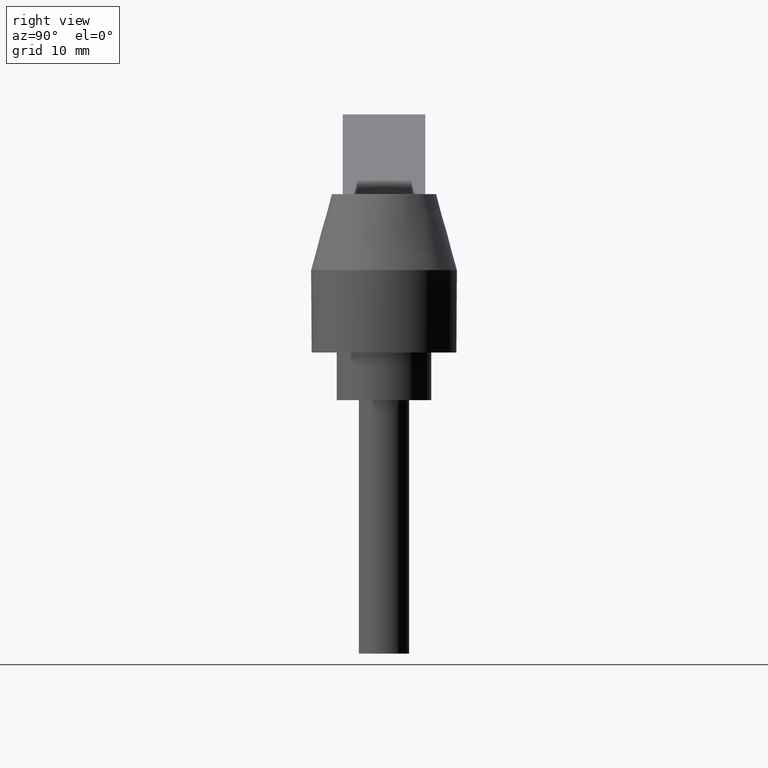
[diagram: clean part render]
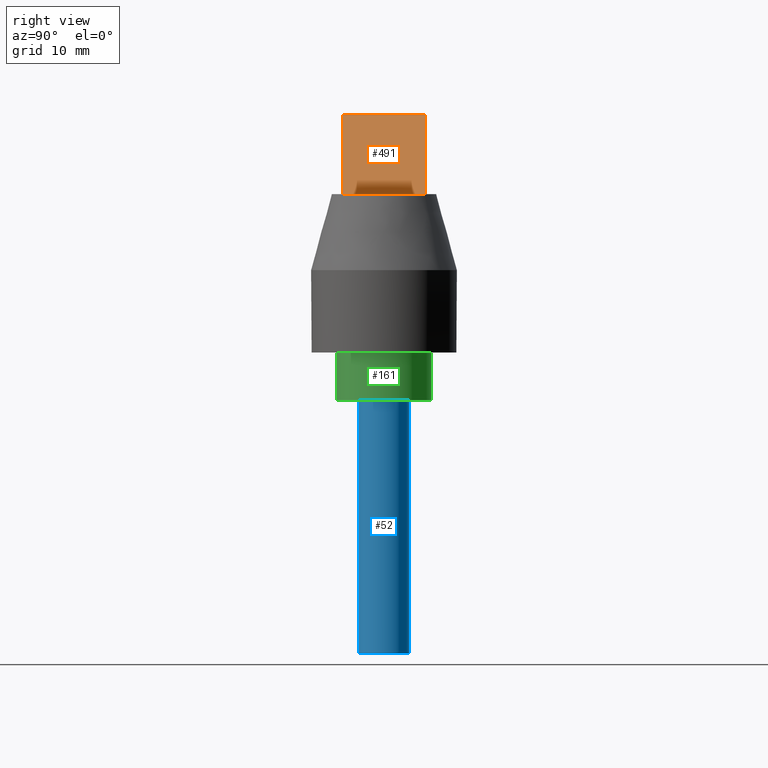
[diagram: same view with three faces highlighted in distinct colors, each labeled with its STEP entity id]
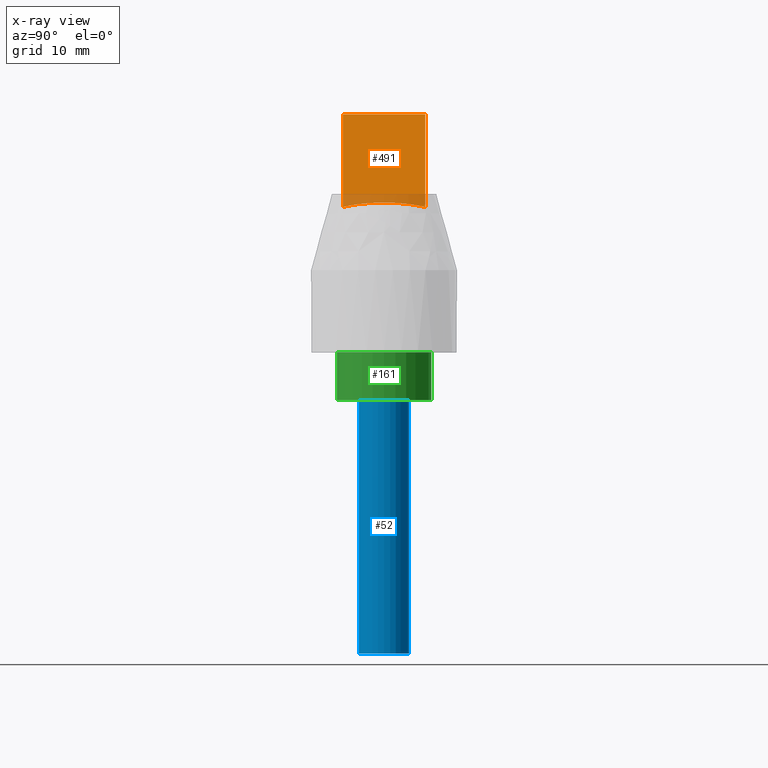
[diagram: x-ray of the same camera — body ghosted, the three highlighted faces saturated]
A machine part, right view with three faces highlighted in distinct colors.
The next image is the same camera in x-ray (body ghosted, the three faces saturated) — at least one of them is partly hidden behind the body in this view.
Their STEP definitions:

[orange] entity #491 — the highlighted planar face has unit normal (0.2652, 0, 0.9642).
#296=CARTESIAN_POINT('',(-8.643206395600316,-3.894810E-014,31.161698878357612));
#297=VERTEX_POINT('',#296);
#304=CARTESIAN_POINT('',(-5.989480691774037,-6.499999999995148,30.431840536688341));
#305=VERTEX_POINT('',#304);
#306=CARTESIAN_POINT('',(-8.643206395600316,-3.894810E-014,31.161698878357598));
#307=CARTESIAN_POINT('',(-8.643206395600316,-0.506302708553347,31.161698878357598));
#308=CARTESIAN_POINT('',(-8.539626593121721,-1.769296278668458,31.133211162856824));
#309=CARTESIAN_POINT('',(-7.984379968311004,-3.656764436087019,30.980500812944641));
#310=CARTESIAN_POINT('',(-7.040074404947722,-5.309362675028818,30.720786973071725));
#311=CARTESIAN_POINT('',(-6.303491650776449,-6.179184693648446,30.518203463147103));
#312=CARTESIAN_POINT('',(-5.989480691774358,-6.499999999997559,30.431840536687346));
#313=B_SPLINE_CURVE_WITH_KNOTS('',3,(#306,#307,#308,#309,#310,#311,#312),.UNSPECIFIED.,.F.,.U.,(4,1,1,1,4),(0.0,1.520719268580641,3.785791119431691,5.874898477297450,7.247546618980997),.UNSPECIFIED.);
#314=EDGE_CURVE('',#297,#305,#313,.T.);
#326=CARTESIAN_POINT('',(-5.989480691774158,6.499999999994949,30.431840536688327));
#327=VERTEX_POINT('',#326);
#337=CARTESIAN_POINT('',(-8.643206395600316,-3.894810E-014,31.161698878357598));
#338=CARTESIAN_POINT('',(-8.643206395600235,0.506302708553188,31.161698878357598));
#339=CARTESIAN_POINT('',(-8.539626593121721,1.769296278668300,31.133211162856782));
#340=CARTESIAN_POINT('',(-7.984379968311005,3.656764436086861,30.980500812944641));
#341=CARTESIAN_POINT('',(-7.040074404947723,5.309362675028499,30.720786973071711));
#342=CARTESIAN_POINT('',(-6.303491650776449,6.179184693648288,30.518203463147088));
#343=CARTESIAN_POINT('',(-5.989480691774360,6.499999999997401,30.431840536687332));
#344=B_SPLINE_CURVE_WITH_KNOTS('',3,(#337,#338,#339,#340,#341,#342,#343),.UNSPECIFIED.,.F.,.U.,(4,1,1,1,4),(0.0,1.520719268580641,3.785791119431691,5.874898477297473,7.247546618981000),.UNSPECIFIED.);
#345=EDGE_CURVE('',#297,#327,#344,.T.);
#443=CARTESIAN_POINT('',(-59.246615726999266,-6.500000000000132,45.079233898757010));
#444=VERTEX_POINT('',#443);
#451=CARTESIAN_POINT('',(-59.246615726999266,6.499999999999967,45.079233898756982));
#452=VERTEX_POINT('',#451);
#453=CARTESIAN_POINT('',(-59.246615726999266,-6.500000000000132,45.079233898757010));
#454=DIRECTION('',(0.0,1.0,0.0));
#455=VECTOR('',#454,13.0);
#456=LINE('',#453,#455);
#457=EDGE_CURVE('',#444,#452,#456,.T.);
#469=CARTESIAN_POINT('',(-59.246615726999266,-6.500000000000132,45.079233898757010));
#470=DIRECTION('',(0.265184780781500,1.063716E-015,0.964197610473013));
#471=DIRECTION('',(0.964197610473013,-1.272602E-016,-0.265184780781500));
#472=AXIS2_PLACEMENT_3D('',#469,#470,#471);
#473=PLANE('',#472);
#474=CARTESIAN_POINT('',(-59.246615726999266,-6.500000000000132,45.079233898757010));
#475=DIRECTION('',(0.964197610473013,-1.286407E-016,-0.265184780781500));
#476=VECTOR('',#475,55.234668139335724);
#477=LINE('',#474,#476);
#478=EDGE_CURVE('',#444,#305,#477,.T.);
#479=ORIENTED_EDGE('',*,*,#478,.T.);
#480=ORIENTED_EDGE('',*,*,#314,.F.);
#481=ORIENTED_EDGE('',*,*,#345,.T.);
#482=CARTESIAN_POINT('',(-59.246615726999266,6.499999999999967,45.079233898756982));
#483=DIRECTION('',(0.964197610473013,-1.286407E-016,-0.265184780781500));
#484=VECTOR('',#483,55.234668139335696);
#485=LINE('',#482,#484);
#486=EDGE_CURVE('',#452,#327,#485,.T.);
#487=ORIENTED_EDGE('',*,*,#486,.F.);
#488=ORIENTED_EDGE('',*,*,#457,.F.);
#489=EDGE_LOOP('',(#479,#480,#481,#487,#488));
#490=FACE_OUTER_BOUND('',#489,.T.);
#491=ADVANCED_FACE('',(#490),#473,.T.);

[blue] entity #52 — the highlighted cylindrical surface (bore or boss wall) has radius 4 mm, axis along (-0, -0, -1).
#2=CARTESIAN_POINT('',(0.253749506228030,2.775558E-017,1.421085E-014));
#3=DIRECTION('',(-8.327157E-016,-9.542551E-016,-1.0));
#4=DIRECTION('',(-1.0,-1.110223E-016,8.327157E-016));
#5=AXIS2_PLACEMENT_3D('',#2,#3,#4);
#6=CYLINDRICAL_SURFACE('',#5,4.0);
#7=CARTESIAN_POINT('',(-3.746250493771987,-1.532108E-014,1.421085E-014));
#8=VERTEX_POINT('',#7);
#9=CARTESIAN_POINT('',(4.253749506228030,4.718448E-016,1.087999E-014));
#10=VERTEX_POINT('',#9);
#11=CARTESIAN_POINT('',(0.253749506228030,2.775558E-017,1.421085E-014));
#12=DIRECTION('',(-8.327157E-016,-9.542551E-016,-1.0));
#13=DIRECTION('',(-1.0,-1.110223E-016,8.327157E-016));
#14=AXIS2_PLACEMENT_3D('',#11,#12,#13);
#15=CIRCLE('',#14,4.0);
#16=EDGE_CURVE('',#8,#10,#15,.T.);
#17=ORIENTED_EDGE('',*,*,#16,.T.);
#18=CARTESIAN_POINT('',(0.253749506228030,2.775558E-017,1.421085E-014));
#19=DIRECTION('',(-8.327157E-016,-9.542551E-016,-1.0));
#20=DIRECTION('',(-1.0,-1.110223E-016,8.327157E-016));
#21=AXIS2_PLACEMENT_3D('',#18,#19,#20);
#22=CIRCLE('',#21,4.0);
#23=EDGE_CURVE('',#10,#8,#22,.T.);
#24=ORIENTED_EDGE('',*,*,#23,.T.);
#25=CARTESIAN_POINT('',(-3.746250493771987,-1.777037E-014,-39.999999999999986));
#26=VERTEX_POINT('',#25);
#27=CARTESIAN_POINT('',(-3.746250493771987,-1.532108E-014,1.421085E-014));
#28=DIRECTION('',(0.0,0.0,-1.0));
#29=VECTOR('',#28,40.0);
#30=LINE('',#27,#29);
#31=EDGE_CURVE('',#8,#26,#30,.T.);
#32=ORIENTED_EDGE('',*,*,#31,.T.);
#33=CARTESIAN_POINT('',(4.253749506228029,-1.977449E-015,-39.999999999999986));
#34=VERTEX_POINT('',#33);
#35=CARTESIAN_POINT('',(0.253749506228030,-2.421538E-015,-39.999999999999986));
#36=DIRECTION('',(-8.327157E-016,-9.542551E-016,-1.0));
#37=DIRECTION('',(-1.0,-1.110223E-016,8.327157E-016));
#38=AXIS2_PLACEMENT_3D('',#35,#36,#37);
#39=CIRCLE('',#38,4.0);
#40=EDGE_CURVE('',#34,#26,#39,.T.);
#41=ORIENTED_EDGE('',*,*,#40,.F.);
#42=CARTESIAN_POINT('',(0.253749506228030,-2.421538E-015,-39.999999999999986));
#43=DIRECTION('',(-8.327157E-016,-9.542551E-016,-1.0));
#44=DIRECTION('',(-1.0,-1.110223E-016,8.327157E-016));
#45=AXIS2_PLACEMENT_3D('',#42,#43,#44);
#46=CIRCLE('',#45,4.0);
#47=EDGE_CURVE('',#26,#34,#46,.T.);
#48=ORIENTED_EDGE('',*,*,#47,.F.);
#49=ORIENTED_EDGE('',*,*,#31,.F.);
#50=EDGE_LOOP('',(#17,#24,#32,#41,#48,#49));
#51=FACE_OUTER_BOUND('',#50,.T.);
#52=ADVANCED_FACE('',(#51),#6,.T.);

[green] entity #161 — the highlighted cylindrical surface (bore or boss wall) has radius 7.5 mm, axis along (-0, -0, -1).
#106=CARTESIAN_POINT('',(-7.499999999879919,3.952394E-014,2.842171E-014));
#107=VERTEX_POINT('',#106);
#108=CARTESIAN_POINT('',(7.499999999879975,8.326673E-016,-2.045622E-014));
#109=VERTEX_POINT('',#108);
#110=CARTESIAN_POINT('',(0.0,0.0,0.0));
#111=DIRECTION('',(-2.727496E-015,-1.072679E-015,-1.0));
#112=DIRECTION('',(-1.0,-1.110223E-016,2.727496E-015));
#113=AXIS2_PLACEMENT_3D('',#110,#111,#112);
#114=CIRCLE('',#113,7.499999999879975);
#115=EDGE_CURVE('',#107,#109,#114,.T.);
#117=CARTESIAN_POINT('',(0.0,0.0,0.0));
#118=DIRECTION('',(-2.727496E-015,-1.072679E-015,-1.0));
#119=DIRECTION('',(-1.0,-1.110223E-016,2.727496E-015));
#120=AXIS2_PLACEMENT_3D('',#117,#118,#119);
#121=CIRCLE('',#120,7.499999999879975);
#122=EDGE_CURVE('',#109,#107,#121,.T.);
#127=CARTESIAN_POINT('',(0.0,0.0,0.0));
#128=DIRECTION('',(-2.727496E-015,-1.072679E-015,-1.0));
#129=DIRECTION('',(-1.0,-1.110223E-016,2.727496E-015));
#130=AXIS2_PLACEMENT_3D('',#127,#128,#129);
#131=CYLINDRICAL_SURFACE('',#130,7.499999999879975);
#132=CARTESIAN_POINT('',(-7.499999999879919,3.998318E-014,7.500000000000028));
#133=VERTEX_POINT('',#132);
#134=CARTESIAN_POINT('',(-7.499999999879919,3.952394E-014,2.842171E-014));
#135=DIRECTION('',(0.0,0.0,1.0));
#136=VECTOR('',#135,7.500000000000000);
#137=LINE('',#134,#136);
#138=EDGE_CURVE('',#107,#133,#137,.T.);
#139=ORIENTED_EDGE('',*,*,#138,.T.);
#140=CARTESIAN_POINT('',(7.499999999879975,1.291910E-015,7.500000000000008));
#141=VERTEX_POINT('',#140);
#142=CARTESIAN_POINT('',(0.0,4.592425E-016,7.500000000000014));
#143=DIRECTION('',(-8.327157E-016,-1.072679E-015,-1.0));
#144=DIRECTION('',(-1.0,-1.110223E-016,8.327157E-016));
#145=AXIS2_PLACEMENT_3D('',#142,#143,#144);
#146=CIRCLE('',#145,7.499999999879975);
#147=EDGE_CURVE('',#133,#141,#146,.T.);
#148=ORIENTED_EDGE('',*,*,#147,.T.);
#149=CARTESIAN_POINT('',(0.0,4.592425E-016,7.500000000000014));
#150=DIRECTION('',(-8.327157E-016,-1.072679E-015,-1.0));
#151=DIRECTION('',(-1.0,-1.110223E-016,8.327157E-016));
#152=AXIS2_PLACEMENT_3D('',#149,#150,#151);
#153=CIRCLE('',#152,7.499999999879975);
#154=EDGE_CURVE('',#141,#133,#153,.T.);
#155=ORIENTED_EDGE('',*,*,#154,.T.);
#156=ORIENTED_EDGE('',*,*,#138,.F.);
#157=ORIENTED_EDGE('',*,*,#122,.F.);
#158=ORIENTED_EDGE('',*,*,#115,.F.);
#159=EDGE_LOOP('',(#139,#148,#155,#156,#157,#158));
#160=FACE_OUTER_BOUND('',#159,.T.);
#161=ADVANCED_FACE('',(#160),#131,.T.);